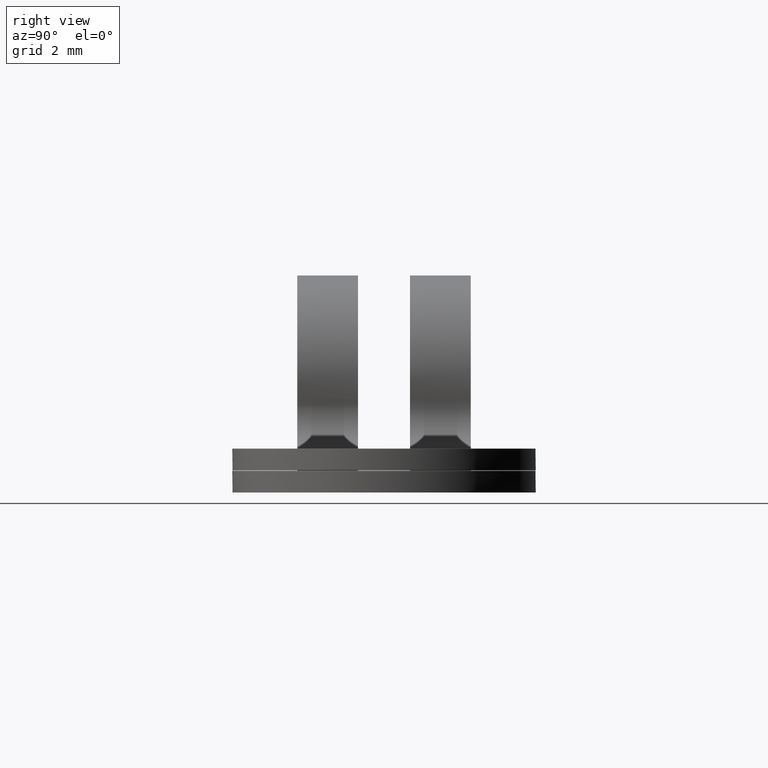
[diagram: clean part render]
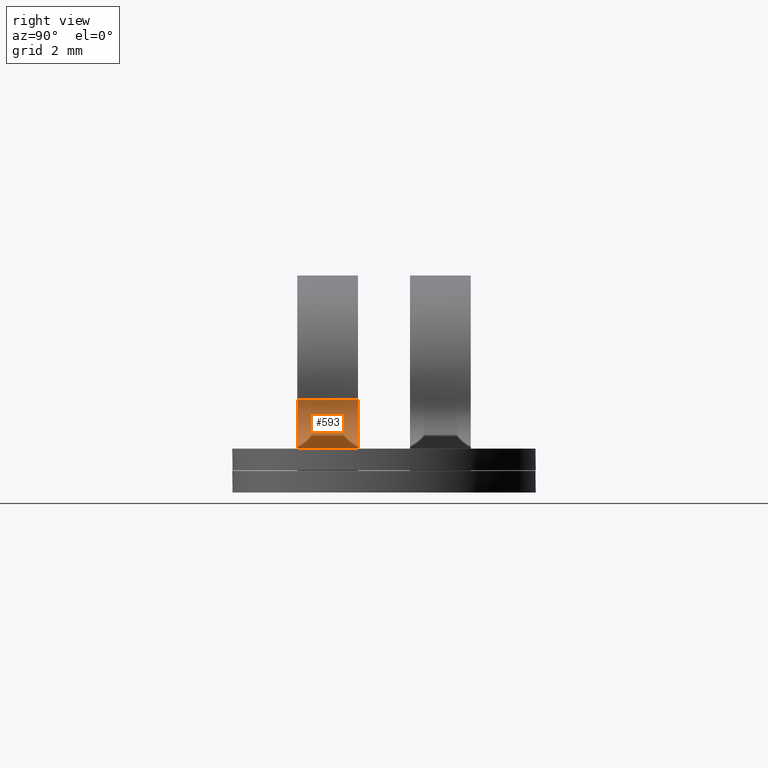
[diagram: same view with one face highlighted and labeled with its STEP entity id]
A machine part, right view. The second image highlights one B-rep face of the part: STEP entity #593.
In plain terms, the highlighted face is a freeform B-spline surface patch.
Its self-contained STEP definition (entity closure, byte-faithful):
#380=CARTESIAN_POINT('',(2.875378758897320,-0.600000000000045,-0.350000000000000));
#381=VERTEX_POINT('',#380);
#401=CARTESIAN_POINT('',(3.865530262456245,-0.600000000000045,-1.490000000000000));
#402=VERTEX_POINT('',#401);
#403=CARTESIAN_POINT('',(3.865530262456245,-0.600000000000045,-1.490000000000000));
#404=CARTESIAN_POINT('',(3.409551855881486,-0.600000000000045,-1.490000000000000));
#405=CARTESIAN_POINT('',(3.110546818929170,-0.600000000000045,-1.145743852430200));
#406=CARTESIAN_POINT('',(2.811541781976854,-0.600000000000045,-0.801487704860400));
#407=CARTESIAN_POINT('',(2.875378758897320,-0.600000000000045,-0.350000000000000));
#415=(BOUNDED_CURVE()B_SPLINE_CURVE(2,(#403,#404,#405,#406,#407),.UNSPECIFIED.,.F.,.U.)B_SPLINE_CURVE_WITH_KNOTS((3,2,3),(0.0,0.500000000000000,1.0),.UNSPECIFIED.)CURVE()GEOMETRIC_REPRESENTATION_ITEM()RATIONAL_B_SPLINE_CURVE((1.0,0.909874676103858,1.0,0.909874676103858,1.0))REPRESENTATION_ITEM(''));
#416=EDGE_CURVE('',#402,#381,#415,.T.);
#547=CARTESIAN_POINT('',(3.908315354965192,-0.565000000000040,-1.489084298675042));
#548=CARTESIAN_POINT('',(3.908315354965192,-2.035875000000230,-1.489084298675042));
#549=CARTESIAN_POINT('',(2.611393413171776,-0.565000000000040,-1.544624081784539));
#550=CARTESIAN_POINT('',(2.611393413171776,-2.035875000000230,-1.544624081784539));
#551=CARTESIAN_POINT('',(2.888596747972752,-0.565000000000040,-0.276456308267063));
#552=CARTESIAN_POINT('',(2.888596747972752,-2.035875000000230,-0.276456308267063));
#560=(BOUNDED_SURFACE()B_SPLINE_SURFACE(1,2,((#547,#549,#551),(#548,#550,#552)),.UNSPECIFIED.,.F.,.F.,.U.)B_SPLINE_SURFACE_WITH_KNOTS((2,2),(3,3),(0.0,1.0),(0.0,0.997607128758263),.UNSPECIFIED.)GEOMETRIC_REPRESENTATION_ITEM()RATIONAL_B_SPLINE_SURFACE(((1.0,0.609697612533904,0.998132113282902),(1.0,0.609697612533904,0.998132113282902)))REPRESENTATION_ITEM('')SURFACE());
#561=CARTESIAN_POINT('',(3.865530262456245,-2.000000000000225,-1.490000000000000));
#562=VERTEX_POINT('',#561);
#563=CARTESIAN_POINT('',(3.865530262456245,-0.600000000000045,-1.490000000000000));
#564=CARTESIAN_POINT('',(3.865530262456245,-2.000000000000225,-1.490000000000000));
#565=QUASI_UNIFORM_CURVE('',1,(#563,#564),.UNSPECIFIED.,.F.,.U.);
#566=EDGE_CURVE('',#402,#562,#565,.T.);
#567=ORIENTED_EDGE('',*,*,#566,.F.);
#568=ORIENTED_EDGE('',*,*,#416,.T.);
#569=CARTESIAN_POINT('',(2.875378758897320,-2.000000000000225,-0.350000000000000));
#570=VERTEX_POINT('',#569);
#571=CARTESIAN_POINT('',(2.875378758897320,-0.600000000000045,-0.350000000000000));
#572=CARTESIAN_POINT('',(2.875378758897320,-2.000000000000225,-0.350000000000000));
#573=QUASI_UNIFORM_CURVE('',1,(#571,#572),.UNSPECIFIED.,.F.,.U.);
#574=EDGE_CURVE('',#381,#570,#573,.T.);
#575=ORIENTED_EDGE('',*,*,#574,.T.);
#576=CARTESIAN_POINT('',(3.865530262456245,-2.000000000000225,-1.490000000000000));
#577=CARTESIAN_POINT('',(3.409551855881486,-2.000000000000225,-1.490000000000000));
#578=CARTESIAN_POINT('',(3.110546818929170,-2.000000000000225,-1.145743852430200));
#579=CARTESIAN_POINT('',(2.811541781976854,-2.000000000000225,-0.801487704860400));
#580=CARTESIAN_POINT('',(2.875378758897320,-2.000000000000225,-0.350000000000000));
#588=(BOUNDED_CURVE()B_SPLINE_CURVE(2,(#576,#577,#578,#579,#580),.UNSPECIFIED.,.F.,.U.)B_SPLINE_CURVE_WITH_KNOTS((3,2,3),(0.0,0.500000000000000,1.0),.UNSPECIFIED.)CURVE()GEOMETRIC_REPRESENTATION_ITEM()RATIONAL_B_SPLINE_CURVE((1.0,0.909874676103858,1.0,0.909874676103858,1.0))REPRESENTATION_ITEM(''));
#589=EDGE_CURVE('',#562,#570,#588,.T.);
#590=ORIENTED_EDGE('',*,*,#589,.F.);
#591=EDGE_LOOP('',(#567,#568,#575,#590));
#592=FACE_OUTER_BOUND('',#591,.T.);
#593=ADVANCED_FACE('',(#592),#560,.F.);